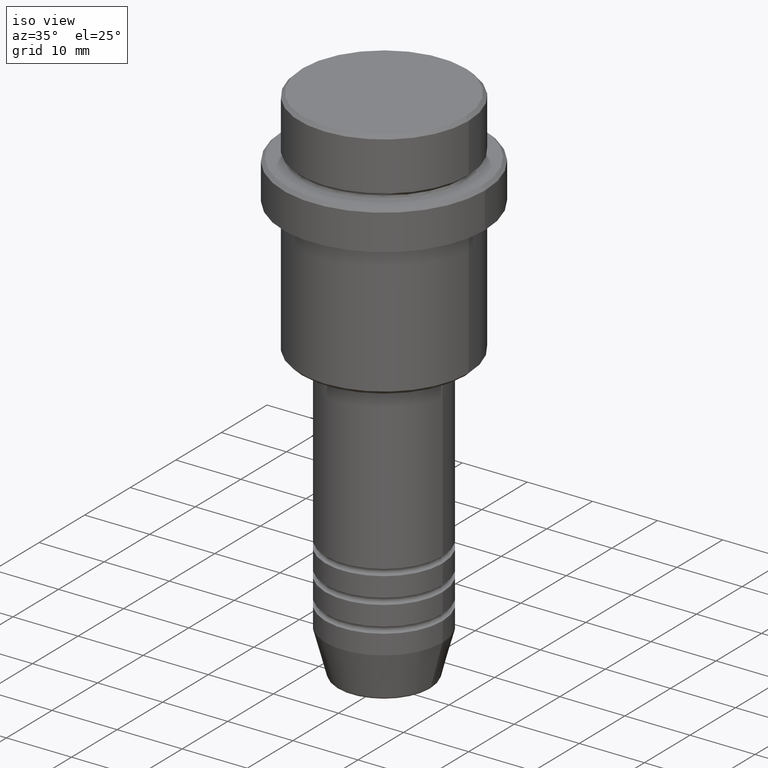
[diagram: clean part render]
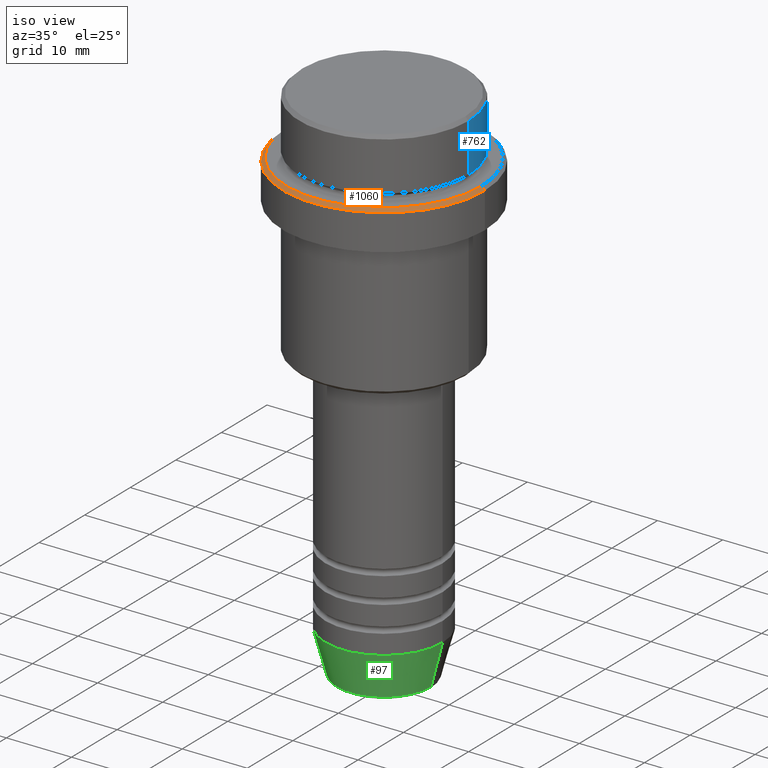
[diagram: same view with three faces highlighted in distinct colors, each labeled with its STEP entity id]
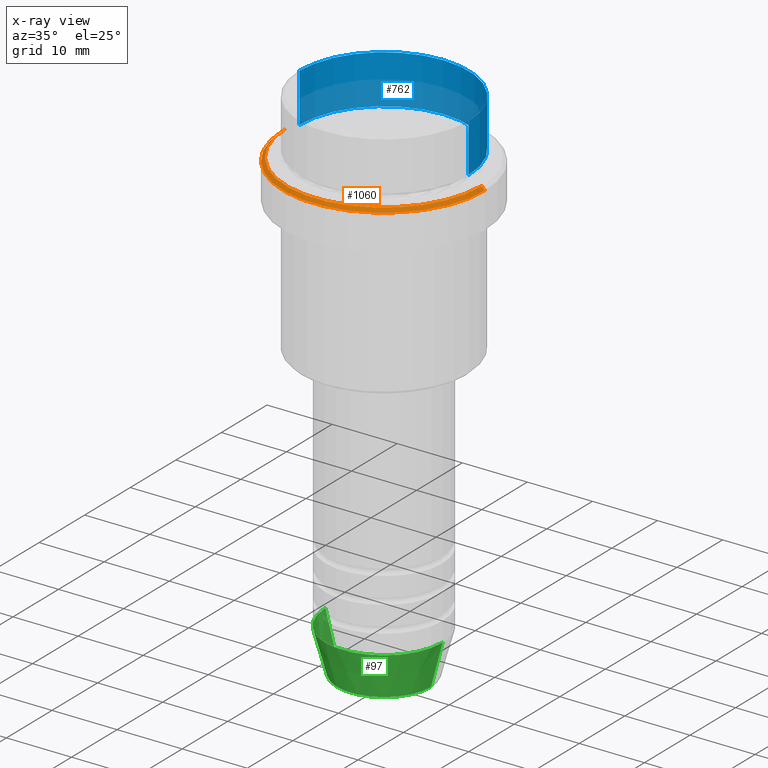
[diagram: x-ray of the same camera — body ghosted, the three highlighted faces saturated]
A machine part, iso view with three faces highlighted in distinct colors.
The next image is the same camera in x-ray (body ghosted, the three faces saturated) — at least one of them is partly hidden behind the body in this view.
Their STEP definitions:

[orange] entity #1060 — the highlighted conical surface has half-angle 45 deg.
#17 = AXIS2_PLACEMENT_3D ( 'NONE', #194, #756, #1286 ) ;
#60 = VERTEX_POINT ( 'NONE', #1124 ) ;
#69 = EDGE_CURVE ( 'NONE', #1359, #60, #254, .T. ) ;
#117 = DIRECTION ( 'NONE',  ( 1.000000000000000000, 0.000000000000000000, 0.000000000000000000 ) ) ;
#146 = EDGE_CURVE ( 'NONE', #374, #1359, #156, .T. ) ;
#148 = DIRECTION ( 'NONE',  ( 0.7071067811865487940, 8.659560562354950115E-17, -0.7071067811865463515 ) ) ;
#153 = DIRECTION ( 'NONE',  ( 0.000000000000000000, 0.000000000000000000, -1.000000000000000000 ) ) ;
#156 = CIRCLE ( 'NONE', #816, 14.99999999999998579 ) ;
#194 = CARTESIAN_POINT ( 'NONE',  ( 0.000000000000000000, 0.000000000000000000, -9.500000000000012434 ) ) ;
#199 = EDGE_CURVE ( 'NONE', #374, #1040, #532, .T. ) ;
#254 = LINE ( 'NONE', #361, #746 ) ;
#312 = ORIENTED_EDGE ( 'NONE', *, *, #1260, .F. ) ;
#355 = DIRECTION ( 'NONE',  ( -1.000000000000000000, 0.000000000000000000, 0.000000000000000000 ) ) ;
#361 = CARTESIAN_POINT ( 'NONE',  ( 14.99999999999998579, 1.836970198721028011E-15, -9.000000000000000000 ) ) ;
#363 = CARTESIAN_POINT ( 'NONE',  ( 0.000000000000000000, 0.000000000000000000, -9.000000000000000000 ) ) ;
#374 = VERTEX_POINT ( 'NONE', #673 ) ;
#434 = CARTESIAN_POINT ( 'NONE',  ( 0.000000000000000000, 0.000000000000000000, -9.000000000000000000 ) ) ;
#468 = ORIENTED_EDGE ( 'NONE', *, *, #199, .T. ) ;
#532 = LINE ( 'NONE', #1413, #949 ) ;
#602 = FACE_OUTER_BOUND ( 'NONE', #1412, .T. ) ;
#609 = ORIENTED_EDGE ( 'NONE', *, *, #146, .F. ) ;
#668 = CARTESIAN_POINT ( 'NONE',  ( 14.99999999999998579, 1.867586368699712587E-15, -9.000000000000000000 ) ) ;
#673 = CARTESIAN_POINT ( 'NONE',  ( -14.99999999999998579, 0.000000000000000000, -9.000000000000000000 ) ) ;
#726 = ORIENTED_EDGE ( 'NONE', *, *, #69, .F. ) ;
#746 = VECTOR ( 'NONE', #148, 1000.000000000000000 ) ;
#756 = DIRECTION ( 'NONE',  ( 0.000000000000000000, 0.000000000000000000, -1.000000000000000000 ) ) ;
#758 = DIRECTION ( 'NONE',  ( -0.000000000000000000, -0.000000000000000000, 1.000000000000000000 ) ) ;
#772 = CIRCLE ( 'NONE', #17, 15.50000000000000000 ) ;
#816 = AXIS2_PLACEMENT_3D ( 'NONE', #434, #758, #117 ) ;
#873 = DIRECTION ( 'NONE',  ( -0.7071067811865487940, 0.000000000000000000, -0.7071067811865463515 ) ) ;
#949 = VECTOR ( 'NONE', #873, 1000.000000000000000 ) ;
#1040 = VERTEX_POINT ( 'NONE', #1130 ) ;
#1060 = ADVANCED_FACE ( 'NONE', ( #602 ), #1069, .T. ) ;
#1069 = CONICAL_SURFACE ( 'NONE', #1180, 14.99999999999998579, 0.7853981633974500554 ) ;
#1124 = CARTESIAN_POINT ( 'NONE',  ( 15.50000000000000000, 0.000000000000000000, -9.500000000000012434 ) ) ;
#1130 = CARTESIAN_POINT ( 'NONE',  ( -15.50000000000000000, 1.898202538678397557E-15, -9.500000000000012434 ) ) ;
#1180 = AXIS2_PLACEMENT_3D ( 'NONE', #363, #153, #355 ) ;
#1260 = EDGE_CURVE ( 'NONE', #60, #1040, #772, .T. ) ;
#1286 = DIRECTION ( 'NONE',  ( 1.000000000000000000, 0.000000000000000000, 0.000000000000000000 ) ) ;
#1359 = VERTEX_POINT ( 'NONE', #668 ) ;
#1412 = EDGE_LOOP ( 'NONE', ( #726, #609, #468, #312 ) ) ;
#1413 = CARTESIAN_POINT ( 'NONE',  ( -14.99999999999998579, 0.000000000000000000, -9.000000000000000000 ) ) ;

[blue] entity #762 — the highlighted cylindrical surface (partial cylindrical patch) has radius 13 mm, axis along (-0, -0, 1).
#15 = CARTESIAN_POINT ( 'NONE',  ( 12.99999999999999822, 0.000000000000000000, -7.999999999999998224 ) ) ;
#18 = AXIS2_PLACEMENT_3D ( 'NONE', #871, #460, #876 ) ;
#133 = AXIS2_PLACEMENT_3D ( 'NONE', #533, #1053, #645 ) ;
#164 = CIRCLE ( 'NONE', #18, 12.99999999999999822 ) ;
#172 = ORIENTED_EDGE ( 'NONE', *, *, #502, .T. ) ;
#240 = ORIENTED_EDGE ( 'NONE', *, *, #271, .T. ) ;
#271 = EDGE_CURVE ( 'NONE', #286, #1219, #458, .T. ) ;
#286 = VERTEX_POINT ( 'NONE', #791 ) ;
#290 = CARTESIAN_POINT ( 'NONE',  ( 0.000000000000000000, 0.000000000000000000, 0.000000000000000000 ) ) ;
#293 = ORIENTED_EDGE ( 'NONE', *, *, #471, .F. ) ;
#349 = VERTEX_POINT ( 'NONE', #15 ) ;
#431 = CIRCLE ( 'NONE', #133, 12.99999999999999822 ) ;
#458 = LINE ( 'NONE', #1227, #1341 ) ;
#460 = DIRECTION ( 'NONE',  ( 0.000000000000000000, 0.000000000000000000, -1.000000000000000000 ) ) ;
#471 = EDGE_CURVE ( 'NONE', #349, #1186, #929, .T. ) ;
#502 = EDGE_CURVE ( 'NONE', #349, #286, #431, .T. ) ;
#519 = VECTOR ( 'NONE', #733, 1000.000000000000000 ) ;
#524 = EDGE_LOOP ( 'NONE', ( #172, #240, #841, #293 ) ) ;
#533 = CARTESIAN_POINT ( 'NONE',  ( 0.000000000000000000, 0.000000000000000000, -7.999999999999998224 ) ) ;
#544 = AXIS2_PLACEMENT_3D ( 'NONE', #290, #805, #1285 ) ;
#645 = DIRECTION ( 'NONE',  ( 1.000000000000000000, 0.000000000000000000, 0.000000000000000000 ) ) ;
#733 = DIRECTION ( 'NONE',  ( -0.000000000000000000, -0.000000000000000000, 1.000000000000000000 ) ) ;
#762 = ADVANCED_FACE ( 'NONE', ( #833 ), #1267, .T. ) ;
#791 = CARTESIAN_POINT ( 'NONE',  ( -12.99999999999999822, 1.592040838891558898E-15, -7.999999999999998224 ) ) ;
#805 = DIRECTION ( 'NONE',  ( -0.000000000000000000, -0.000000000000000000, 1.000000000000000000 ) ) ;
#811 = CARTESIAN_POINT ( 'NONE',  ( 12.99999999999999822, 0.000000000000000000, -0.4999999999999899525 ) ) ;
#833 = FACE_OUTER_BOUND ( 'NONE', #524, .T. ) ;
#841 = ORIENTED_EDGE ( 'NONE', *, *, #1381, .T. ) ;
#871 = CARTESIAN_POINT ( 'NONE',  ( 0.000000000000000000, 0.000000000000000000, -0.4999999999999899525 ) ) ;
#876 = DIRECTION ( 'NONE',  ( 1.000000000000000000, 0.000000000000000000, 0.000000000000000000 ) ) ;
#929 = LINE ( 'NONE', #1158, #519 ) ;
#948 = CARTESIAN_POINT ( 'NONE',  ( -12.99999999999999822, 1.592040838891558898E-15, -0.4999999999999899525 ) ) ;
#1053 = DIRECTION ( 'NONE',  ( -0.000000000000000000, -0.000000000000000000, 1.000000000000000000 ) ) ;
#1122 = DIRECTION ( 'NONE',  ( -0.000000000000000000, -0.000000000000000000, 1.000000000000000000 ) ) ;
#1158 = CARTESIAN_POINT ( 'NONE',  ( 12.99999999999999822, 0.000000000000000000, 0.000000000000000000 ) ) ;
#1186 = VERTEX_POINT ( 'NONE', #811 ) ;
#1219 = VERTEX_POINT ( 'NONE', #948 ) ;
#1227 = CARTESIAN_POINT ( 'NONE',  ( -12.99999999999999822, 1.592040838891558898E-15, 0.000000000000000000 ) ) ;
#1267 = CYLINDRICAL_SURFACE ( 'NONE', #544, 12.99999999999999822 ) ;
#1285 = DIRECTION ( 'NONE',  ( 1.000000000000000000, 0.000000000000000000, 0.000000000000000000 ) ) ;
#1341 = VECTOR ( 'NONE', #1122, 1000.000000000000000 ) ;
#1381 = EDGE_CURVE ( 'NONE', #1219, #1186, #164, .T. ) ;

[green] entity #97 — the highlighted conical surface has half-angle 15 deg.
#21 = DIRECTION ( 'NONE',  ( 1.000000000000000000, 0.000000000000000000, 0.000000000000000000 ) ) ;
#82 = CARTESIAN_POINT ( 'NONE',  ( 0.000000000000000000, 0.000000000000000000, -80.62940952255124216 ) ) ;
#97 = ADVANCED_FACE ( 'NONE', ( #1118 ), #518, .T. ) ;
#124 = ORIENTED_EDGE ( 'NONE', *, *, #1272, .F. ) ;
#130 = DIRECTION ( 'NONE',  ( -0.000000000000000000, -0.000000000000000000, 1.000000000000000000 ) ) ;
#184 = LINE ( 'NONE', #944, #1297 ) ;
#216 = DIRECTION ( 'NONE',  ( 1.000000000000000000, 0.000000000000000000, 0.000000000000000000 ) ) ;
#276 = CARTESIAN_POINT ( 'NONE',  ( -9.000000000000000000, 1.102182119232617714E-15, -74.00000000000000000 ) ) ;
#304 = DIRECTION ( 'NONE',  ( -0.000000000000000000, -0.000000000000000000, 1.000000000000000000 ) ) ;
#305 = EDGE_CURVE ( 'NONE', #353, #433, #690, .T. ) ;
#350 = CARTESIAN_POINT ( 'NONE',  ( -9.000000000000000000, 1.102182119232617714E-15, -74.00000000000000000 ) ) ;
#353 = VERTEX_POINT ( 'NONE', #563 ) ;
#433 = VERTEX_POINT ( 'NONE', #276 ) ;
#459 = AXIS2_PLACEMENT_3D ( 'NONE', #1190, #751, #630 ) ;
#464 = VERTEX_POINT ( 'NONE', #1370 ) ;
#472 = ORIENTED_EDGE ( 'NONE', *, *, #1210, .T. ) ;
#490 = EDGE_CURVE ( 'NONE', #890, #464, #184, .T. ) ;
#518 = CONICAL_SURFACE ( 'NONE', #768, 9.000000000000000000, 0.2617993877991500740 ) ;
#563 = CARTESIAN_POINT ( 'NONE',  ( -7.223655072137193045, 9.934123627281767082E-16, -80.62940952255124216 ) ) ;
#597 = ORIENTED_EDGE ( 'NONE', *, *, #490, .T. ) ;
#612 = DIRECTION ( 'NONE',  ( 0.2588190451025213501, 0.000000000000000000, 0.9659258262890680902 ) ) ;
#617 = VECTOR ( 'NONE', #784, 1000.000000000000000 ) ;
#630 = DIRECTION ( 'NONE',  ( 1.000000000000000000, 0.000000000000000000, 0.000000000000000000 ) ) ;
#687 = AXIS2_PLACEMENT_3D ( 'NONE', #82, #304, #216 ) ;
#690 = LINE ( 'NONE', #350, #617 ) ;
#751 = DIRECTION ( 'NONE',  ( -0.000000000000000000, -0.000000000000000000, 1.000000000000000000 ) ) ;
#768 = AXIS2_PLACEMENT_3D ( 'NONE', #780, #130, #21 ) ;
#780 = CARTESIAN_POINT ( 'NONE',  ( 0.000000000000000000, 0.000000000000000000, -74.00000000000000000 ) ) ;
#784 = DIRECTION ( 'NONE',  ( -0.2588190451025213501, 3.169619151431772337E-17, 0.9659258262890680902 ) ) ;
#827 = EDGE_LOOP ( 'NONE', ( #1353, #472, #597, #124 ) ) ;
#890 = VERTEX_POINT ( 'NONE', #1280 ) ;
#944 = CARTESIAN_POINT ( 'NONE',  ( 9.000000000000000000, 0.000000000000000000, -74.00000000000000000 ) ) ;
#1003 = CIRCLE ( 'NONE', #459, 9.000000000000000000 ) ;
#1118 = FACE_OUTER_BOUND ( 'NONE', #827, .T. ) ;
#1190 = CARTESIAN_POINT ( 'NONE',  ( 0.000000000000000000, 0.000000000000000000, -74.00000000000000000 ) ) ;
#1210 = EDGE_CURVE ( 'NONE', #353, #890, #1364, .T. ) ;
#1272 = EDGE_CURVE ( 'NONE', #433, #464, #1003, .T. ) ;
#1280 = CARTESIAN_POINT ( 'NONE',  ( 7.223655072137193045, 0.000000000000000000, -80.62940952255124216 ) ) ;
#1297 = VECTOR ( 'NONE', #612, 1000.000000000000000 ) ;
#1353 = ORIENTED_EDGE ( 'NONE', *, *, #305, .F. ) ;
#1364 = CIRCLE ( 'NONE', #687, 7.223655072137193045 ) ;
#1370 = CARTESIAN_POINT ( 'NONE',  ( 9.000000000000000000, 0.000000000000000000, -74.00000000000000000 ) ) ;